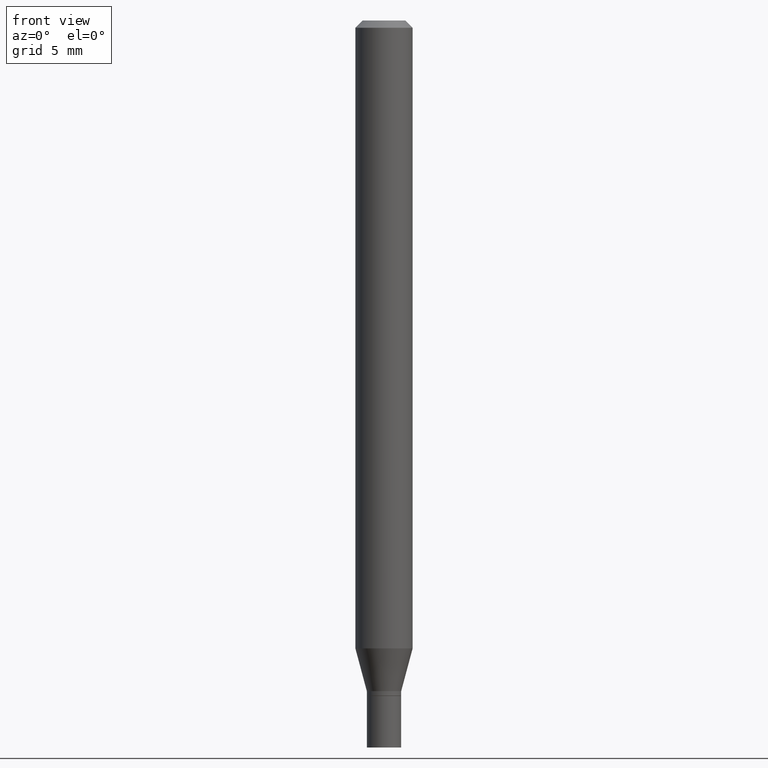
[diagram: clean part render]
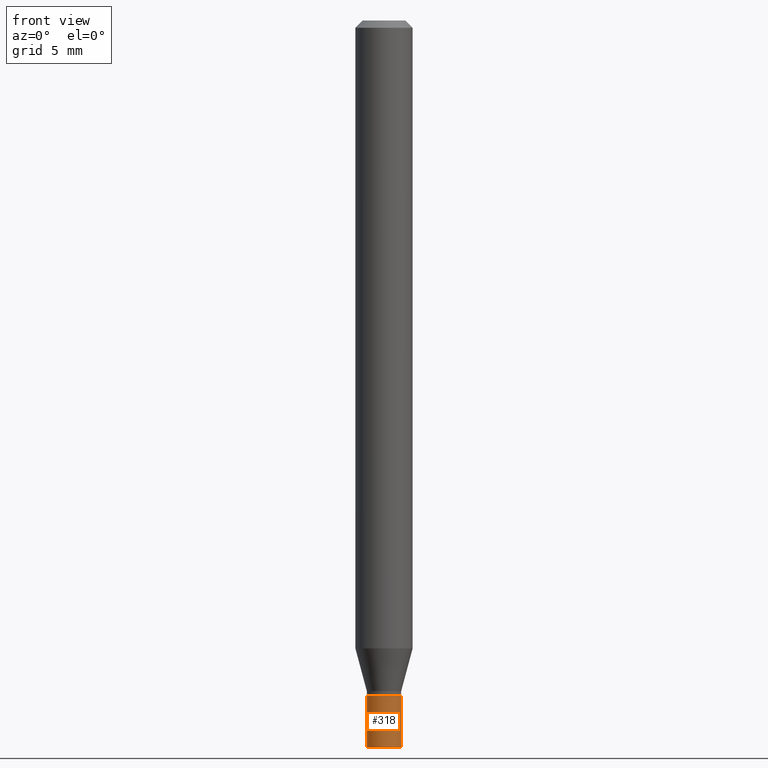
[diagram: same view with one face highlighted and labeled with its STEP entity id]
A machine part, front view. The second image highlights one B-rep face of the part: STEP entity #318.
In plain terms, the highlighted cylindrical surface (edge-blend (fillet) strip) has radius 0.9004 mm, axis along (-0, 0, 1).
Its self-contained STEP definition (entity closure, byte-faithful):
#52 = CARTESIAN_POINT ( 'NONE',  ( 3.408249875180225636E-29, -4.866077541945693107E-15, -1.393700000000000161 ) ) ;
#67 = CIRCLE ( 'NONE', #380, 0.03545000000000000234 ) ;
#73 = CARTESIAN_POINT ( 'NONE',  ( -0.03545000000000000234, -4.799762375278250257E-15, -1.500000000000000222 ) ) ;
#88 = LINE ( 'NONE', #313, #171 ) ;
#94 = ORIENTED_EDGE ( 'NONE', *, *, #198, .F. ) ;
#96 = VECTOR ( 'NONE', #426, 39.37007874015748143 ) ;
#97 = VERTEX_POINT ( 'NONE', #73 ) ;
#98 = FACE_OUTER_BOUND ( 'NONE', #203, .T. ) ;
#104 = DIRECTION ( 'NONE',  ( -2.445468806185136597E-29, 3.491481338843145583E-15, 1.000000000000000000 ) ) ;
#120 = CIRCLE ( 'NONE', #379, 0.03545000000000000234 ) ;
#128 = DIRECTION ( 'NONE',  ( 1.000000000000000000, -6.982962677686254089E-15, 0.000000000000000000 ) ) ;
#132 = DIRECTION ( 'NONE',  ( -2.445468806185136597E-29, 3.491481338843145583E-15, 1.000000000000000000 ) ) ;
#134 = ORIENTED_EDGE ( 'NONE', *, *, #396, .F. ) ;
#138 = CARTESIAN_POINT ( 'NONE',  ( -0.03545000000000000234, 2.518873998269555325E-16, -1.743762489495364089E-30 ) ) ;
#148 = VERTEX_POINT ( 'NONE', #370 ) ;
#149 = CARTESIAN_POINT ( 'NONE',  ( 0.03545000000000000234, -5.484768035188696060E-15, -1.500000000000000222 ) ) ;
#156 = EDGE_CURVE ( 'NONE', #463, #239, #88, .T. ) ;
#159 = EDGE_CURVE ( 'NONE', #97, #463, #120, .T. ) ;
#171 = VECTOR ( 'NONE', #349, 39.37007874015748143 ) ;
#198 = EDGE_CURVE ( 'NONE', #148, #239, #67, .T. ) ;
#199 = AXIS2_PLACEMENT_3D ( 'NONE', #383, #104, #218 ) ;
#200 = DIRECTION ( 'NONE',  ( -2.445468806185136597E-29, 3.491481338843145583E-15, 1.000000000000000000 ) ) ;
#203 = EDGE_LOOP ( 'NONE', ( #134, #243, #244, #94 ) ) ;
#218 = DIRECTION ( 'NONE',  ( 1.000000000000000000, -6.982962677686266711E-15, 4.876176775795935793E-29 ) ) ;
#230 = CARTESIAN_POINT ( 'NONE',  ( 3.668203209277704895E-29, -5.237222008264718177E-15, -1.500000000000000222 ) ) ;
#239 = VERTEX_POINT ( 'NONE', #446 ) ;
#243 = ORIENTED_EDGE ( 'NONE', *, *, #159, .T. ) ;
#244 = ORIENTED_EDGE ( 'NONE', *, *, #156, .T. ) ;
#313 = CARTESIAN_POINT ( 'NONE',  ( 0.03545000000000000234, -2.475460269239781793E-16, 1.728604667019659440E-30 ) ) ;
#318 = ADVANCED_FACE ( 'NONE', ( #98 ), #363, .T. ) ;
#324 = LINE ( 'NONE', #138, #96 ) ;
#349 = DIRECTION ( 'NONE',  ( -2.445468806185136877E-29, 3.491481338843145188E-15, 1.000000000000000000 ) ) ;
#363 = CYLINDRICAL_SURFACE ( 'NONE', #199, 0.03545000000000000234 ) ;
#370 = CARTESIAN_POINT ( 'NONE',  ( -0.03545000000000000234, -4.799762375278250257E-15, -1.393700000000000161 ) ) ;
#379 = AXIS2_PLACEMENT_3D ( 'NONE', #230, #200, #128 ) ;
#380 = AXIS2_PLACEMENT_3D ( 'NONE', #52, #132, #411 ) ;
#383 = CARTESIAN_POINT ( 'NONE',  ( 0.000000000000000000, 0.000000000000000000, 0.000000000000000000 ) ) ;
#396 = EDGE_CURVE ( 'NONE', #97, #148, #324, .T. ) ;
#411 = DIRECTION ( 'NONE',  ( 1.000000000000000000, -6.982962677686254089E-15, 0.000000000000000000 ) ) ;
#426 = DIRECTION ( 'NONE',  ( -2.445468806185136877E-29, 3.491481338843145188E-15, 1.000000000000000000 ) ) ;
#446 = CARTESIAN_POINT ( 'NONE',  ( 0.03545000000000000234, -5.113623568869670202E-15, -1.393700000000000161 ) ) ;
#463 = VERTEX_POINT ( 'NONE', #149 ) ;